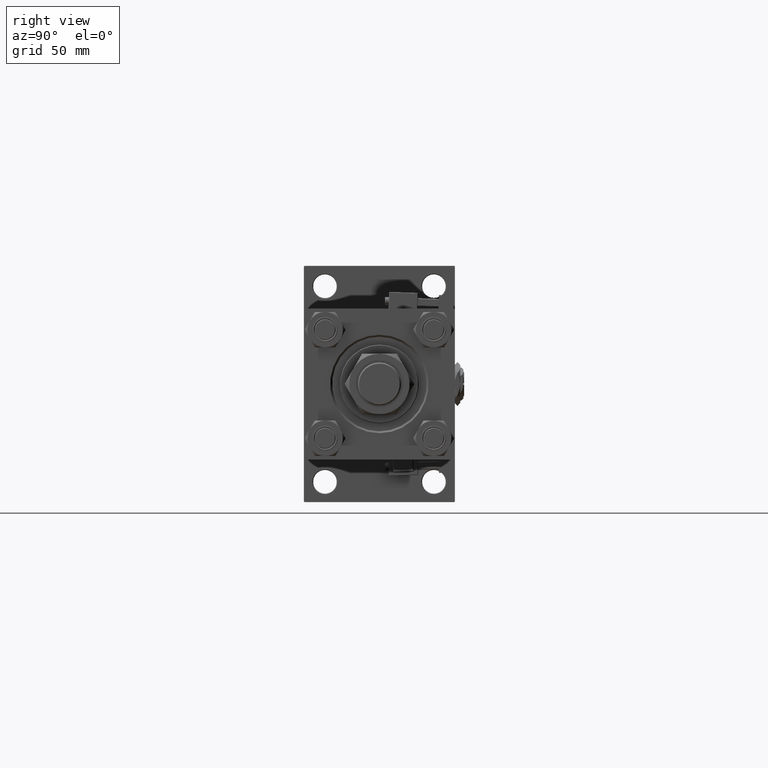
[diagram: clean part render]
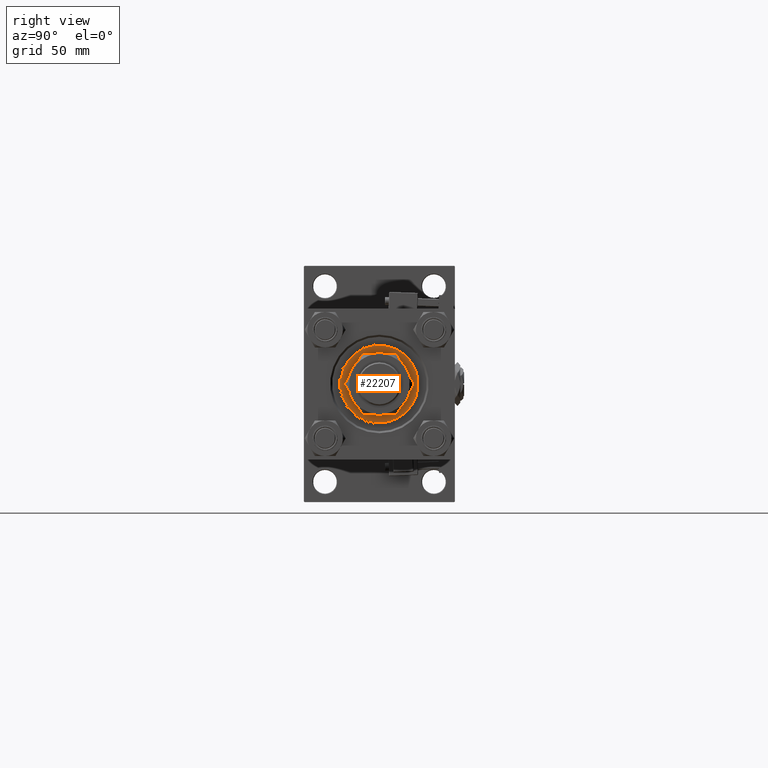
[diagram: same view with one face highlighted and labeled with its STEP entity id]
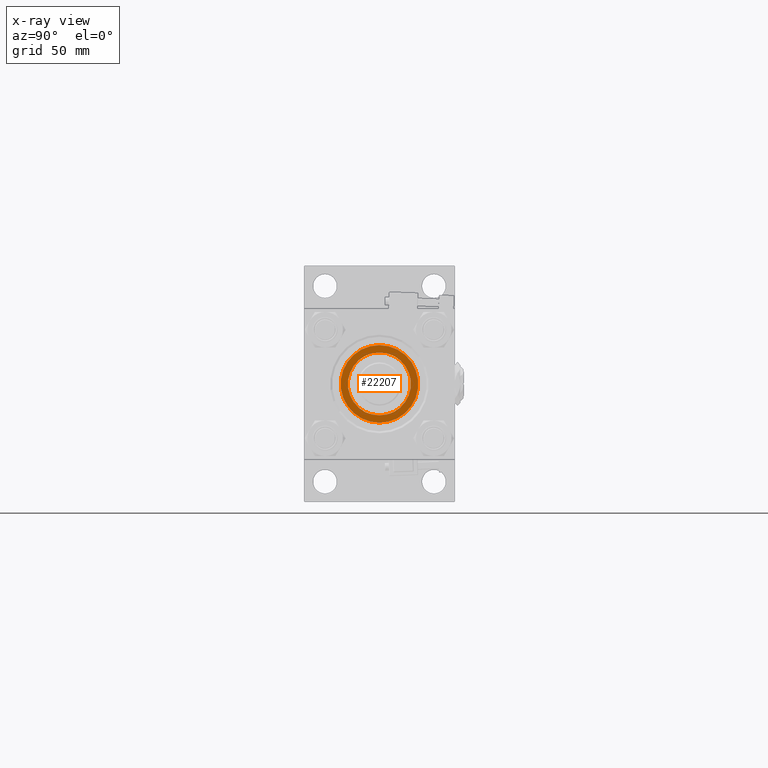
[diagram: x-ray of the same camera — body ghosted, the highlighted face saturated]
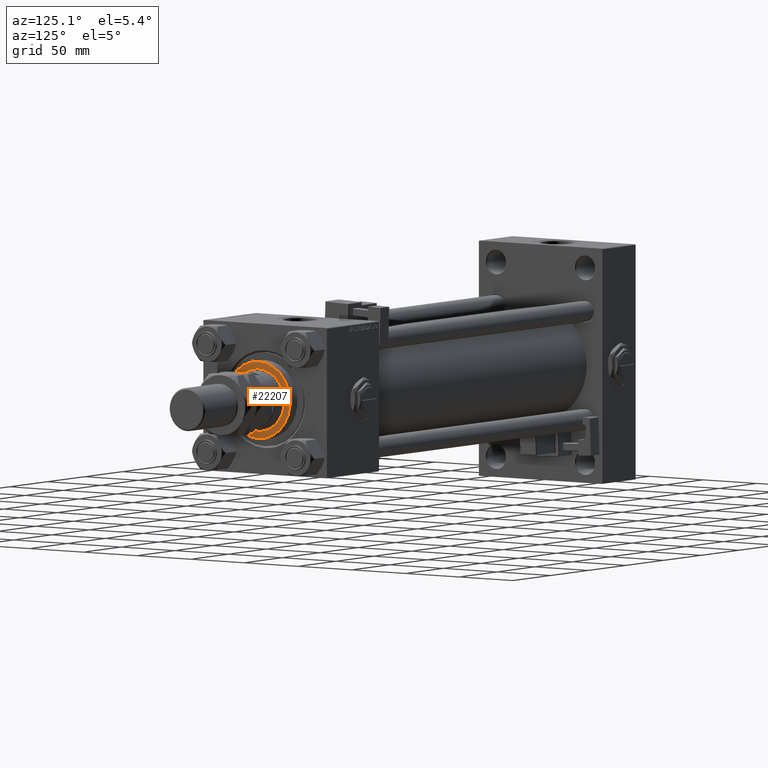
[diagram: same view with one face highlighted and labeled with its STEP entity id]
A machine part, right view. The second image highlights one B-rep face of the part: STEP entity #22207.
The next image is the same camera in x-ray: the body ghosted, the highlighted face saturated — about 0% of this face is hidden behind the body in this view.
A second angle (auxiliary view) of the same face is appended — the face is thin or edge-on in the first view.
In plain terms, the highlighted planar face has unit normal (1, 0, 0).
Its self-contained STEP definition (entity closure, byte-faithful):
#1062 = VERTEX_POINT ( 'NONE', #31720 ) ;
#1949 = CIRCLE ( 'NONE', #25599, 24.00000000000000355 ) ;
#3061 = DIRECTION ( 'NONE',  ( 1.000000000000000000, 0.000000000000000000, 0.000000000000000000 ) ) ;
#4311 = DIRECTION ( 'NONE',  ( 1.000000000000000000, 0.000000000000000000, 0.000000000000000000 ) ) ;
#7155 = CARTESIAN_POINT ( 'NONE',  ( -24.00000000000000355, 2.939152317953648289E-15, 37.69999999999999574 ) ) ;
#7339 = CARTESIAN_POINT ( 'NONE',  ( 0.000000000000000000, 0.000000000000000000, 37.69999999999999574 ) ) ;
#7750 = CARTESIAN_POINT ( 'NONE',  ( 0.000000000000000000, 0.000000000000000000, 37.69999999999999574 ) ) ;
#9234 = CARTESIAN_POINT ( 'NONE',  ( 24.00000000000000355, 0.000000000000000000, 37.69999999999999574 ) ) ;
#10458 = AXIS2_PLACEMENT_3D ( 'NONE', #7339, #24733, #3061 ) ;
#12425 = CARTESIAN_POINT ( 'NONE',  ( 0.000000000000000000, 0.000000000000000000, 37.69999999999999574 ) ) ;
#13126 = EDGE_CURVE ( 'NONE', #31567, #48923, #1949, .T. ) ;
#13729 = AXIS2_PLACEMENT_3D ( 'NONE', #31875, #18213, #54109 ) ;
#16881 = DIRECTION ( 'NONE',  ( 0.000000000000000000, 0.000000000000000000, 1.000000000000000000 ) ) ;
#17264 = DIRECTION ( 'NONE',  ( 0.000000000000000000, 0.000000000000000000, 1.000000000000000000 ) ) ;
#17864 = CIRCLE ( 'NONE', #30611, 24.00000000000000355 ) ;
#18213 = DIRECTION ( 'NONE',  ( 0.000000000000000000, 0.000000000000000000, 1.000000000000000000 ) ) ;
#19438 = EDGE_LOOP ( 'NONE', ( #27936, #49502 ) ) ;
#22207 = ADVANCED_FACE ( 'NONE', ( #51074, #24858 ), #43365, .T. ) ;
#23496 = EDGE_LOOP ( 'NONE', ( #31688, #24050 ) ) ;
#23814 = EDGE_CURVE ( 'NONE', #1062, #25067, #53244, .T. ) ;
#24050 = ORIENTED_EDGE ( 'NONE', *, *, #36092, .T. ) ;
#24733 = DIRECTION ( 'NONE',  ( 0.000000000000000000, 0.000000000000000000, 1.000000000000000000 ) ) ;
#24858 = FACE_OUTER_BOUND ( 'NONE', #23496, .T. ) ;
#25067 = VERTEX_POINT ( 'NONE', #39994 ) ;
#25599 = AXIS2_PLACEMENT_3D ( 'NONE', #12425, #17264, #50904 ) ;
#26264 = EDGE_CURVE ( 'NONE', #48923, #31567, #17864, .T. ) ;
#27936 = ORIENTED_EDGE ( 'NONE', *, *, #26264, .F. ) ;
#30611 = AXIS2_PLACEMENT_3D ( 'NONE', #7750, #43363, #4311 ) ;
#31567 = VERTEX_POINT ( 'NONE', #7155 ) ;
#31688 = ORIENTED_EDGE ( 'NONE', *, *, #23814, .T. ) ;
#31720 = CARTESIAN_POINT ( 'NONE',  ( -29.50000000000000000, 0.000000000000000000, 37.69999999999999574 ) ) ;
#31875 = CARTESIAN_POINT ( 'NONE',  ( 0.000000000000000000, 0.000000000000000000, 37.69999999999999574 ) ) ;
#36092 = EDGE_CURVE ( 'NONE', #25067, #1062, #41020, .T. ) ;
#36788 = AXIS2_PLACEMENT_3D ( 'NONE', #47358, #16881, #42237 ) ;
#39994 = CARTESIAN_POINT ( 'NONE',  ( 29.50000000000000000, 3.643324227463375391E-15, 37.69999999999999574 ) ) ;
#41020 = CIRCLE ( 'NONE', #13729, 29.50000000000000000 ) ;
#42237 = DIRECTION ( 'NONE',  ( 1.000000000000000000, 0.000000000000000000, -0.000000000000000000 ) ) ;
#43363 = DIRECTION ( 'NONE',  ( 0.000000000000000000, 0.000000000000000000, 1.000000000000000000 ) ) ;
#43365 = PLANE ( 'NONE',  #36788 ) ;
#47358 = CARTESIAN_POINT ( 'NONE',  ( 0.000000000000000000, 0.000000000000000000, 37.69999999999999574 ) ) ;
#48923 = VERTEX_POINT ( 'NONE', #9234 ) ;
#49502 = ORIENTED_EDGE ( 'NONE', *, *, #13126, .F. ) ;
#50904 = DIRECTION ( 'NONE',  ( 1.000000000000000000, 0.000000000000000000, 0.000000000000000000 ) ) ;
#51074 = FACE_BOUND ( 'NONE', #19438, .T. ) ;
#53244 = CIRCLE ( 'NONE', #10458, 29.50000000000000000 ) ;
#54109 = DIRECTION ( 'NONE',  ( 1.000000000000000000, 0.000000000000000000, 0.000000000000000000 ) ) ;